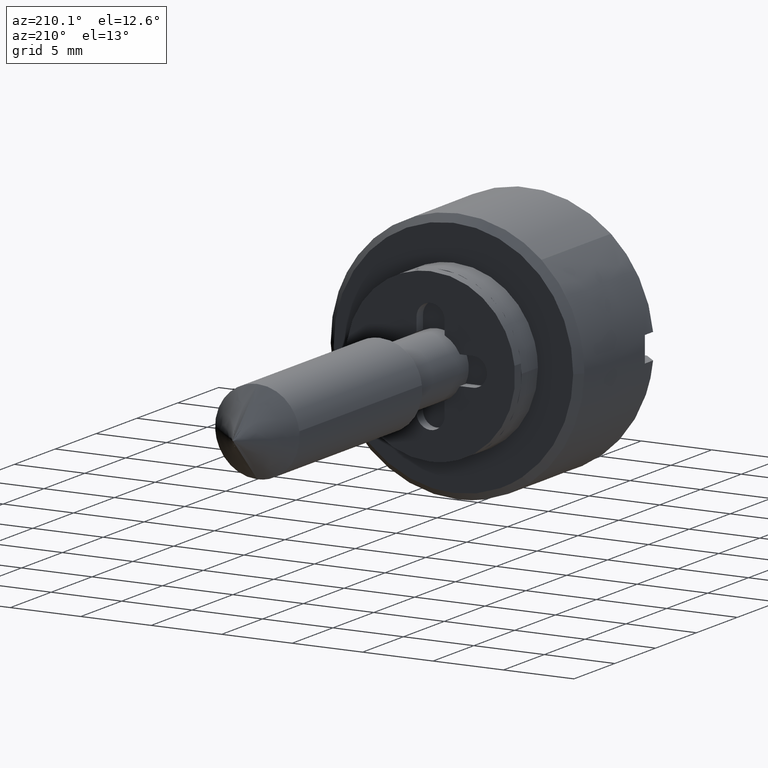
[diagram: clean part render]
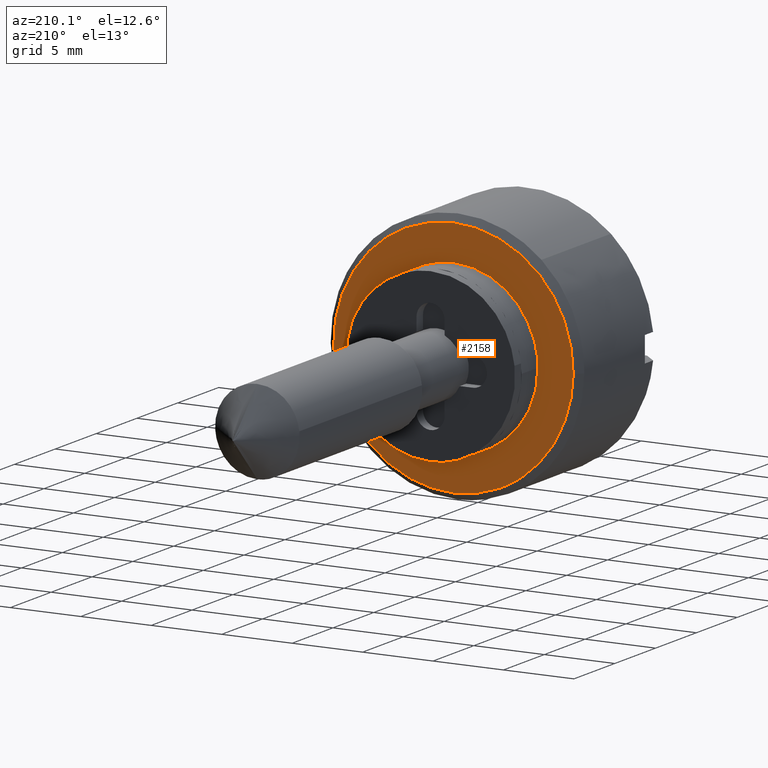
[diagram: same view with one face highlighted and labeled with its STEP entity id]
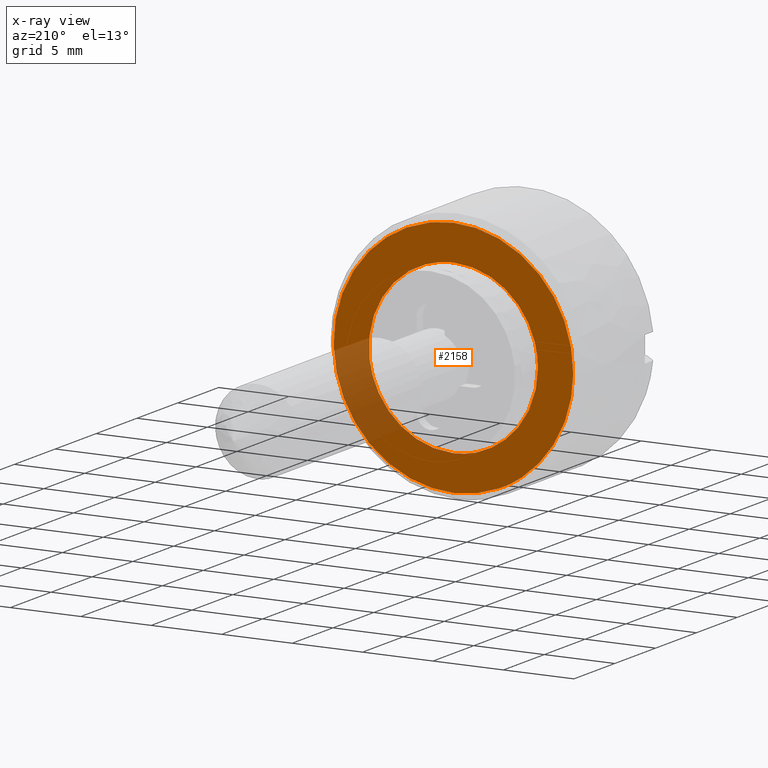
[diagram: x-ray of the same camera — body ghosted, the highlighted face saturated]
A machine part, auxiliary view. The second image highlights one B-rep face of the part: STEP entity #2158.
The next image is the same camera in x-ray: the body ghosted, the highlighted face saturated — about 14% of this face is hidden behind the body in this view.
In plain terms, the highlighted face is a freeform B-spline surface patch.
Its self-contained STEP definition (entity closure, byte-faithful):
#1430=CARTESIAN_POINT('',(-2.000000000000709,4.878868866157049,-6.960361958034484));
#1431=VERTEX_POINT('',#1430);
#1437=CARTESIAN_POINT('',(-2.000000000000100,0.0,-8.500000000000000));
#1438=VERTEX_POINT('',#1437);
#1439=CARTESIAN_POINT('',(-2.000000000000100,0.0,-8.500000000000000));
#1440=CARTESIAN_POINT('',(-2.000000000000101,2.682368334908339,-8.500000000000002));
#1441=CARTESIAN_POINT('',(-2.000000000000709,4.878868866157049,-6.960361958034484));
#1449=(BOUNDED_CURVE()B_SPLINE_CURVE(2,(#1439,#1440,#1441),.UNSPECIFIED.,.F.,.U.)B_SPLINE_CURVE_WITH_KNOTS((3,3),(0.0,0.098673726203377),.UNSPECIFIED.)CURVE()GEOMETRIC_REPRESENTATION_ITEM()RATIONAL_B_SPLINE_CURVE((1.0,0.884396538879903,0.860049271925623))REPRESENTATION_ITEM(''));
#1450=EDGE_CURVE('',#1438,#1431,#1449,.T.);
#1452=CARTESIAN_POINT('',(-2.000000000000100,0.0,8.500000000000000));
#1453=VERTEX_POINT('',#1452);
#1454=CARTESIAN_POINT('',(-2.000000000000100,0.0,8.500000000000000));
#1455=CARTESIAN_POINT('',(-2.000000000000100,-8.500000000000002,8.500000000000002));
#1456=CARTESIAN_POINT('',(-2.000000000000100,-8.500000000000000,0.0));
#1457=CARTESIAN_POINT('',(-2.000000000000100,-8.500000000000002,-8.500000000000002));
#1458=CARTESIAN_POINT('',(-2.000000000000100,0.0,-8.500000000000000));
#1466=(BOUNDED_CURVE()B_SPLINE_CURVE(2,(#1454,#1455,#1456,#1457,#1458),.UNSPECIFIED.,.F.,.U.)B_SPLINE_CURVE_WITH_KNOTS((3,2,3),(0.500000000000000,0.750000000000000,1.0),.UNSPECIFIED.)CURVE()GEOMETRIC_REPRESENTATION_ITEM()RATIONAL_B_SPLINE_CURVE((1.0,0.707106781186548,1.0,0.707106781186548,1.0))REPRESENTATION_ITEM(''));
#1467=EDGE_CURVE('',#1453,#1438,#1466,.T.);
#1469=CARTESIAN_POINT('',(-2.000000000003222,8.499676346048370,-0.074175551759162));
#1470=VERTEX_POINT('',#1469);
#1471=CARTESIAN_POINT('',(-2.000000000003223,8.499676346048370,-0.074175551759162));
#1472=CARTESIAN_POINT('',(-2.000000000000100,8.500000000000000,-0.037088481998920));
#1473=CARTESIAN_POINT('',(-2.000000000000100,8.500000000000000,0.0));
#1474=CARTESIAN_POINT('',(-2.000000000000100,8.500000000000002,8.500000000000002));
#1475=CARTESIAN_POINT('',(-2.000000000000100,0.0,8.500000000000000));
#1483=(BOUNDED_CURVE()B_SPLINE_CURVE(2,(#1471,#1472,#1473,#1474,#1475),.UNSPECIFIED.,.F.,.U.)B_SPLINE_CURVE_WITH_KNOTS((3,2,3),(0.248460105664061,0.250000000000000,0.500000000000000),.UNSPECIFIED.)CURVE()GEOMETRIC_REPRESENTATION_ITEM()RATIONAL_B_SPLINE_CURVE((0.996414028098204,0.998195901565257,1.0,0.707106781186548,1.0))REPRESENTATION_ITEM(''));
#1484=EDGE_CURVE('',#1470,#1453,#1483,.T.);
#1586=CARTESIAN_POINT('',(-2.000000000000709,4.878868866157051,-6.960361958034485));
#1587=CARTESIAN_POINT('',(-2.000000000000101,8.461496807967091,-4.449117279988458));
#1588=CARTESIAN_POINT('',(-2.000000000003222,8.499676346048370,-0.074175551759162));
#1596=(BOUNDED_CURVE()B_SPLINE_CURVE(2,(#1586,#1587,#1588),.UNSPECIFIED.,.F.,.U.)B_SPLINE_CURVE_WITH_KNOTS((3,3),(0.098673726203377,0.248460105664061),.UNSPECIFIED.)CURVE()GEOMETRIC_REPRESENTATION_ITEM()RATIONAL_B_SPLINE_CURVE((0.860049271925623,0.823090203821438,0.996414028098204))REPRESENTATION_ITEM(''));
#1597=EDGE_CURVE('',#1431,#1470,#1596,.T.);
#1621=CARTESIAN_POINT('',(-2.000000000000115,0.0,-6.0));
#1622=VERTEX_POINT('',#1621);
#1623=CARTESIAN_POINT('',(-2.000000000000012,-5.953597559931964,-0.744765798333392));
#1624=VERTEX_POINT('',#1623);
#1625=CARTESIAN_POINT('',(-2.000000000000115,0.0,-6.0));
#1626=CARTESIAN_POINT('',(-2.000000000000116,-5.296193585909339,-6.0));
#1627=CARTESIAN_POINT('',(-2.000000000000012,-5.953597559931965,-0.744765798333392));
#1635=(BOUNDED_CURVE()B_SPLINE_CURVE(2,(#1625,#1626,#1627),.UNSPECIFIED.,.F.,.U.)B_SPLINE_CURVE_WITH_KNOTS((3,3),(0.0,0.228526133748798),.UNSPECIFIED.)CURVE()GEOMETRIC_REPRESENTATION_ITEM()RATIONAL_B_SPLINE_CURVE((1.0,0.732264980413284,0.954005551989056))REPRESENTATION_ITEM(''));
#1636=EDGE_CURVE('',#1622,#1624,#1635,.T.);
#1638=CARTESIAN_POINT('',(-2.000000000000114,5.999771541559630,0.052358849214219));
#1639=VERTEX_POINT('',#1638);
#1640=CARTESIAN_POINT('',(-2.000000000000114,5.999771541559630,0.052358849214219));
#1641=CARTESIAN_POINT('',(-2.000000000000115,6.000000000000001,0.026179741127407));
#1642=CARTESIAN_POINT('',(-2.000000000000115,6.0,0.0));
#1643=CARTESIAN_POINT('',(-2.000000000000114,6.0,-6.0));
#1644=CARTESIAN_POINT('',(-2.000000000000115,0.0,-6.0));
#1652=(BOUNDED_CURVE()B_SPLINE_CURVE(2,(#1640,#1641,#1642,#1643,#1644),.UNSPECIFIED.,.F.,.U.)B_SPLINE_CURVE_WITH_KNOTS((3,2,3),(0.748460127024667,0.750000000000000,1.0),.UNSPECIFIED.)CURVE()GEOMETRIC_REPRESENTATION_ITEM()RATIONAL_B_SPLINE_CURVE((0.996414077532633,0.998195926590763,1.0,0.707106781186548,1.0))REPRESENTATION_ITEM(''));
#1653=EDGE_CURVE('',#1639,#1622,#1652,.T.);
#1724=CARTESIAN_POINT('',(-2.000000000000115,0.0,6.0));
#1725=VERTEX_POINT('',#1724);
#1726=CARTESIAN_POINT('',(-2.000000000000012,-5.953597559931965,-0.744765798333392));
#1727=CARTESIAN_POINT('',(-2.000000000000116,-6.000000000000001,-0.373828445168597));
#1728=CARTESIAN_POINT('',(-2.000000000000115,-6.0,0.0));
#1729=CARTESIAN_POINT('',(-2.000000000000114,-6.0,6.0));
#1730=CARTESIAN_POINT('',(-2.000000000000115,0.0,6.0));
#1738=(BOUNDED_CURVE()B_SPLINE_CURVE(2,(#1726,#1727,#1728,#1729,#1730),.UNSPECIFIED.,.F.,.U.)B_SPLINE_CURVE_WITH_KNOTS((3,2,3),(0.228526133748798,0.250000000000000,0.500000000000000),.UNSPECIFIED.)CURVE()GEOMETRIC_REPRESENTATION_ITEM()RATIONAL_B_SPLINE_CURVE((0.954005551989056,0.974841800773264,1.0,0.707106781186548,1.0))REPRESENTATION_ITEM(''));
#1739=EDGE_CURVE('',#1624,#1725,#1738,.T.);
#1773=CARTESIAN_POINT('',(-2.000000000000115,0.0,6.0));
#1774=CARTESIAN_POINT('',(-2.000000000000116,5.947867984855381,6.000000000000002));
#1775=CARTESIAN_POINT('',(-2.000000000000113,5.999771541559630,0.052358849214219));
#1783=(BOUNDED_CURVE()B_SPLINE_CURVE(2,(#1773,#1774,#1775),.UNSPECIFIED.,.F.,.U.)B_SPLINE_CURVE_WITH_KNOTS((3,3),(0.500000000000000,0.748460127024668),.UNSPECIFIED.)CURVE()GEOMETRIC_REPRESENTATION_ITEM()RATIONAL_B_SPLINE_CURVE((1.0,0.708910854595783,0.996414077532636))REPRESENTATION_ITEM(''));
#1784=EDGE_CURVE('',#1725,#1639,#1783,.T.);
#2141=CARTESIAN_POINT('',(-2.000000000000100,-9.349133811290400,-9.349149967050701));
#2142=CARTESIAN_POINT('',(-2.000000000000100,9.348810828621524,-9.349149967050701));
#2143=CARTESIAN_POINT('',(-2.000000000000100,-9.349133811290400,9.349150423026236));
#2144=CARTESIAN_POINT('',(-2.000000000000100,9.348810828621524,9.349150423026236));
#2145=B_SPLINE_SURFACE_WITH_KNOTS('',1,1,((#2141,#2143),(#2142,#2144)),.UNSPECIFIED.,.F.,.F.,.U.,(2,2),(2,2),(0.0,18.697944639911920),(0.0,18.698300390076941),.UNSPECIFIED.);
#2146=ORIENTED_EDGE('',*,*,#1450,.T.);
#2147=ORIENTED_EDGE('',*,*,#1597,.T.);
#2148=ORIENTED_EDGE('',*,*,#1484,.T.);
#2149=ORIENTED_EDGE('',*,*,#1467,.T.);
#2150=EDGE_LOOP('',(#2146,#2147,#2148,#2149));
#2151=FACE_OUTER_BOUND('',#2150,.T.);
#2152=ORIENTED_EDGE('',*,*,#1784,.T.);
#2153=ORIENTED_EDGE('',*,*,#1653,.T.);
#2154=ORIENTED_EDGE('',*,*,#1636,.T.);
#2155=ORIENTED_EDGE('',*,*,#1739,.T.);
#2156=EDGE_LOOP('',(#2152,#2153,#2154,#2155));
#2157=FACE_BOUND('',#2156,.T.);
#2158=ADVANCED_FACE('',(#2151,#2157),#2145,.T.);